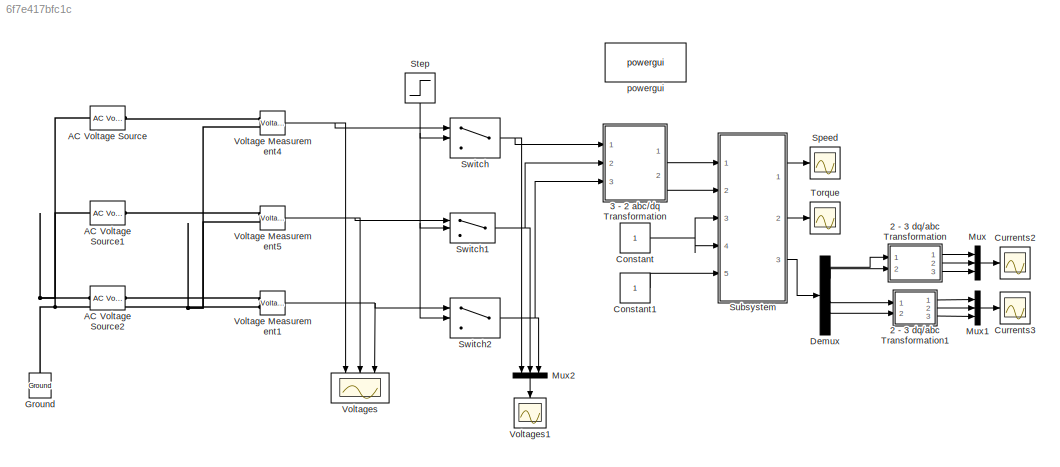
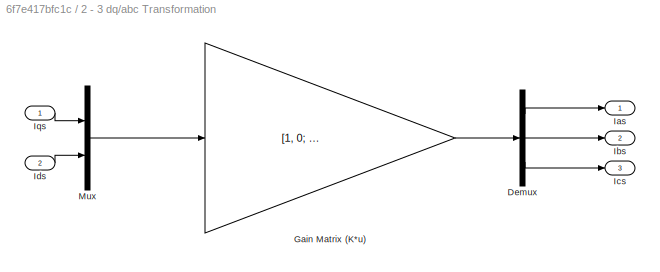
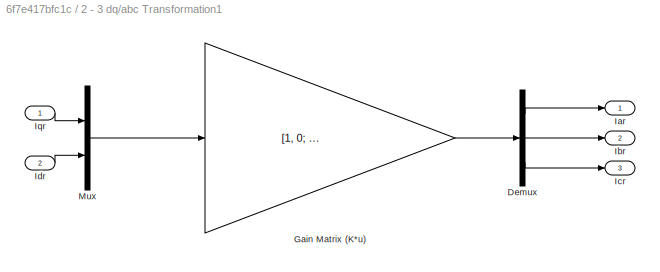
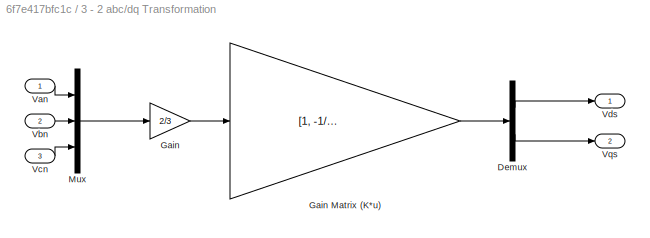
MODEL slx_6f7e417bfc1c
KIND model
BLOCK [SubSystem] 2 - 3 dq//abc Transformation
  FunctionWithSeparateData = off
  MaskHideContents = off
  MinAlgLoopOccurrences = off
  Opaque = off
  Ports = [2, 3]
  PropExecContextOutsideSubsystem = off
  RTWSystemCode = Auto
  RequestExecContextInheritance = off
BLOCK [Demux] 2 - 3 dq//abc Transformation/Demux
  DisplayOption = bar
  Outputs = 3
  Ports = [1, 3]
BLOCK [Gain] 2 - 3 dq//abc Transformation/Gain Matrix (K*u)
  Gain = [1, 0; -1/2 sqrt(3)/2; -1/2, -sqrt(3)/2]
  Multiplication = Matrix(K*u)
  OutDataTypeStr = Inherit: Inherit via internal rule
  ParamDataTypeStr = Inherit: Inherit via internal rule
  SaturateOnIntegerOverflow = off
BLOCK [Outport] 2 - 3 dq//abc Transformation/Ias
  IconDisplay = Port number
BLOCK [Outport] 2 - 3 dq//abc Transformation/Ibs
  IconDisplay = Port number
  Port = 2
BLOCK [Outport] 2 - 3 dq//abc Transformation/Ics
  IconDisplay = Port number
  Port = 3
BLOCK [Inport] 2 - 3 dq//abc Transformation/Ids
  IconDisplay = Port number
  Port = 2
BLOCK [Inport] 2 - 3 dq//abc Transformation/Iqs
  IconDisplay = Port number
BLOCK [Mux] 2 - 3 dq//abc Transformation/Mux
  DisplayOption = bar
  Inputs = 2
  Ports = [2, 1]
BLOCK [SubSystem] 2 - 3 dq//abc Transformation1
  FunctionWithSeparateData = off
  MaskHideContents = off
  MinAlgLoopOccurrences = off
  Opaque = off
  Ports = [2, 3]
  PropExecContextOutsideSubsystem = off
  RTWSystemCode = Auto
  RequestExecContextInheritance = off
BLOCK [Demux] 2 - 3 dq//abc Transformation1/Demux
  DisplayOption = bar
  Outputs = 3
  Ports = [1, 3]
BLOCK [Gain] 2 - 3 dq//abc Transformation1/Gain Matrix (K*u)
  Gain = [1, 0; -1/2 sqrt(3)/2; -1/2, -sqrt(3)/2]
  Multiplication = Matrix(K*u)
  OutDataTypeStr = Inherit: Inherit via internal rule
  ParamDataTypeStr = Inherit: Inherit via internal rule
  SaturateOnIntegerOverflow = off
BLOCK [Outport] 2 - 3 dq//abc Transformation1/Iar
  IconDisplay = Port number
BLOCK [Outport] 2 - 3 dq//abc Transformation1/Ibr
  IconDisplay = Port number
  Port = 2
BLOCK [Outport] 2 - 3 dq//abc Transformation1/Icr
  IconDisplay = Port number
  Port = 3
BLOCK [Inport] 2 - 3 dq//abc Transformation1/Idr
  IconDisplay = Port number
  Port = 2
BLOCK [Inport] 2 - 3 dq//abc Transformation1/Iqr
  IconDisplay = Port number
BLOCK [Mux] 2 - 3 dq//abc Transformation1/Mux
  DisplayOption = bar
  Inputs = 2
  Ports = [2, 1]
BLOCK [SubSystem] 3 - 2 abc//dq Transformation
  FunctionWithSeparateData = off
  MaskHideContents = off
  MinAlgLoopOccurrences = off
  Opaque = off
  Ports = [3, 2]
  PropExecContextOutsideSubsystem = off
  RTWSystemCode = Auto
  RequestExecContextInheritance = off
BLOCK [Demux] 3 - 2 abc//dq Transformation/Demux
  DisplayOption = bar
  Outputs = 2
  Ports = [1, 2]
BLOCK [Gain] 3 - 2 abc//dq Transformation/Gain
  Gain = 2/3
  OutDataTypeStr = Inherit: Inherit via internal rule
  ParamDataTypeStr = Inherit: Inherit via internal rule
  SaturateOnIntegerOverflow = off
BLOCK [Gain] 3 - 2 abc//dq Transformation/Gain Matrix (K*u)
  Gain = [1, -1/2, -1/2; 0, sqrt(3)/2, - sqrt(3)/2]
  Multiplication = Matrix(K*u)
  OutDataTypeStr = Inherit: Inherit via internal rule
  ParamDataTypeStr = Inherit: Inherit via internal rule
  SaturateOnIntegerOverflow = off
BLOCK [Mux] 3 - 2 abc//dq Transformation/Mux
  DisplayOption = bar
  Inputs = 3
  Ports = [3, 1]
BLOCK [Inport] 3 - 2 abc//dq Transformation/Van
  IconDisplay = Port number
BLOCK [Inport] 3 - 2 abc//dq Transformation/Vbn
  IconDisplay = Port number
  Port = 2
BLOCK [Inport] 3 - 2 abc//dq Transformation/Vcn
  IconDisplay = Port number
  Port = 3
BLOCK [Outport] 3 - 2 abc//dq Transformation/Vds
  IconDisplay = Port number
BLOCK [Outport] 3 - 2 abc//dq Transformation/Vqs
  IconDisplay = Port number
  Port = 2
BLOCK [Reference] AC Voltage Source  REF=powerlib/Electrical
Sources/AC Voltage Source
  Amplitude = 310.268700753
  Frequency = 50
  Measurements = None
  Phase = 90
  Ports = [0, 0, 0, 0, 0, 1, 1]
  SampleTime = 0
  SourceBlock = powerlib/Electrical\nSources/AC Voltage Source
  SourceType = AC Voltage Source
BLOCK [Reference] AC Voltage Source1  REF=powerlib/Electrical
Sources/AC Voltage Source
  Amplitude = 310.268700753
  Frequency = 50
  Measurements = None
  Phase = -30
  Ports = [0, 0, 0, 0, 0, 1, 1]
  SampleTime = 0
  SourceBlock = powerlib/Electrical\nSources/AC Voltage Source
  SourceType = AC Voltage Source
BLOCK [Reference] AC Voltage Source2  REF=powerlib/Electrical
Sources/AC Voltage Source
  Amplitude = 310.268700753
  Frequency = 50
  Measurements = None
  Phase = -150
  Ports = [0, 0, 0, 0, 0, 1, 1]
  SampleTime = 0
  SourceBlock = powerlib/Electrical\nSources/AC Voltage Source
  SourceType = AC Voltage Source
BLOCK [Constant] Constant
BLOCK [Constant] Constant1
BLOCK [Scope] Currents2
  Floating = off
  LimitDataPoints = off
  NumInputPorts = 1
  Ports = [1]
  SaveName = ScopeData2
  ShowLegends = off
BLOCK [Scope] Currents3
  Floating = off
  LimitDataPoints = off
  NumInputPorts = 1
  Ports = [1]
  SaveName = ScopeData3
  ShowLegends = off
BLOCK [Demux] Demux
  DisplayOption = bar
  Outputs = 6
  Ports = [1, 6]
BLOCK [Reference] Ground  REF=powerlib/Elements/Ground
  LConnTagsString = a
  Ports = [0, 0, 0, 0, 0, 1]
  SourceBlock = powerlib/Elements/Ground
  SourceType = Ground
BLOCK [Mux] Mux
  DisplayOption = bar
  Inputs = 3
  Ports = [3, 1]
BLOCK [Mux] Mux1
  DisplayOption = bar
  Inputs = 3
  Ports = [3, 1]
BLOCK [Mux] Mux2
  DisplayOption = bar
  Inputs = 3
  Ports = [3, 1]
BLOCK [Scope] Speed
  Floating = off
  LimitDataPoints = off
  NumInputPorts = 1
  Ports = [1]
  SaveName = ScopeData4
  ShowLegends = off
BLOCK [Step] Step
  After = 0
  Before = 1
  SampleTime = 0
  Time = 2
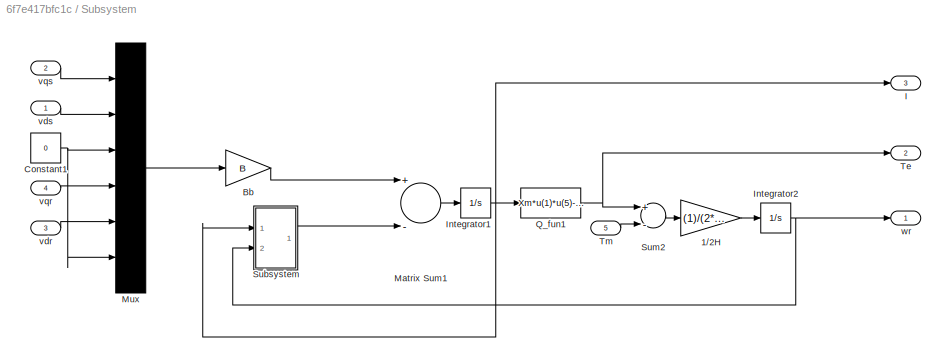
BLOCK [SubSystem] Subsystem
  FunctionWithSeparateData = off
  MaskHideContents = off
  MinAlgLoopOccurrences = off
  Opaque = off
  Ports = [5, 3]
  PropExecContextOutsideSubsystem = off
  RTWSystemCode = Auto
  RequestExecContextInheritance = off
BLOCK [Gain] Subsystem/1//2H
  Gain = (1)/(2*H)
  OutDataTypeStr = Inherit: Inherit via internal rule
  ParamDataTypeStr = Inherit: Inherit via internal rule
  SaturateOnIntegerOverflow = off
BLOCK [Gain] Subsystem/Bb
  Gain = B
  Multiplication = Matrix(K*u)
  OutDataTypeStr = Inherit: Inherit via internal rule
  ParamDataTypeStr = Inherit: Inherit via internal rule
  SaturateOnIntegerOverflow = off
BLOCK [Constant] Subsystem/Constant1
  Value = 0
BLOCK [Outport] Subsystem/I
  IconDisplay = Port number
  Port = 3
BLOCK [Integrator] Subsystem/Integrator1
  InitialCondition = [0; 0; 0; 0; 0; 0]
  Ports = [1, 1]
BLOCK [Integrator] Subsystem/Integrator2
  Ports = [1, 1]
BLOCK [Sum] Subsystem/Matrix Sum1
  InputSameDT = off
  Inputs = +-
  OutDataTypeStr = Inherit: Inherit via internal rule
  Ports = [2, 1]
  SaturateOnIntegerOverflow = off
BLOCK [Mux] Subsystem/Mux
  DisplayOption = bar
  Inputs = 6
  Ports = [6, 1]
BLOCK [Fcn] Subsystem/Q_fun1
  Expr = Xm*u(1)*u(5)-Xm*u(2)*u(4)
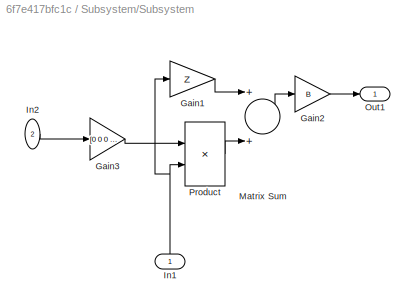
BLOCK [SubSystem] Subsystem/Subsystem
  FunctionWithSeparateData = off
  MaskHideContents = off
  MinAlgLoopOccurrences = off
  Opaque = off
  Ports = [2, 1]
  PropExecContextOutsideSubsystem = off
  RTWSystemCode = Auto
  RequestExecContextInheritance = off
BLOCK [Gain] Subsystem/Subsystem/Gain1
  Gain = Z
  Multiplication = Matrix(K*u)
  OutDataTypeStr = Inherit: Inherit via internal rule
  ParamDataTypeStr = Inherit: Inherit via internal rule
  SaturateOnIntegerOverflow = off
BLOCK [Gain] Subsystem/Subsystem/Gain2
  Gain = B
  Multiplication = Matrix(K*u)
  OutDataTypeStr = Inherit: Inherit via internal rule
  ParamDataTypeStr = Inherit: Inherit via internal rule
  SaturateOnIntegerOverflow = off
BLOCK [Gain] Subsystem/Subsystem/Gain3
  Gain = [0 0 0 0 0 0;0 0 0 0 0 0;0 0 0 0 0 0;0 -Xm 0 0 -Xr 0;Xm 0 0 Xr 0 0;0 0 0 0 0 0]
  OutDataTypeStr = Inherit: Inherit via internal rule
  ParamDataTypeStr = Inherit: Inherit via internal rule
  SaturateOnIntegerOverflow = off
BLOCK [Inport] Subsystem/Subsystem/In1
  IconDisplay = Port number
BLOCK [Inport] Subsystem/Subsystem/In2
  IconDisplay = Port number
  Port = 2
BLOCK [Sum] Subsystem/Subsystem/Matrix Sum
  InputSameDT = off
  OutDataTypeStr = Inherit: Inherit via internal rule
  Ports = [2, 1]
  SaturateOnIntegerOverflow = off
BLOCK [Outport] Subsystem/Subsystem/Out1
  IconDisplay = Port number
BLOCK [Product] Subsystem/Subsystem/Product
  InputSameDT = off
  Multiplication = Matrix(*)
  OutDataTypeStr = Inherit: Inherit via internal rule
  Ports = [2, 1]
  RndMeth = Floor
  SaturateOnIntegerOverflow = off
BLOCK [Sum] Subsystem/Sum2
  Inputs = +-
  Ports = [2, 1]
BLOCK [Outport] Subsystem/Te
  IconDisplay = Port number
  Port = 2
BLOCK [Inport] Subsystem/Tm
  IconDisplay = Port number
  Port = 5
BLOCK [Inport] Subsystem/vdr
  IconDisplay = Port number
  Port = 3
BLOCK [Inport] Subsystem/vds
  IconDisplay = Port number
BLOCK [Inport] Subsystem/vqr
  IconDisplay = Port number
  Port = 4
BLOCK [Inport] Subsystem/vqs
  IconDisplay = Port number
  Port = 2
BLOCK [Outport] Subsystem/wr
  IconDisplay = Port number
BLOCK [Switch] Switch
  Criteria = u2 > Threshold
  InputSameDT = off
  SaturateOnIntegerOverflow = off
BLOCK [Switch] Switch1
  Criteria = u2 > Threshold
  InputSameDT = off
  SaturateOnIntegerOverflow = off
BLOCK [Switch] Switch2
  Criteria = u2 > Threshold
  InputSameDT = off
  SaturateOnIntegerOverflow = off
BLOCK [Scope] Torque
  Floating = off
  LimitDataPoints = off
  NumInputPorts = 1
  Ports = [1]
  SaveName = ScopeData5
  ShowLegends = off
BLOCK [Reference] Voltage Measurement1  REF=powerlib/Measurements/Voltage Measurement
  OutputType = Complex
  PSBequivalent = 0
  PhasorSimulation = off
  Ports = [0, 1, 0, 0, 0, 2]
  SourceBlock = powerlib/Measurements/Voltage Measurement
  SourceType = Voltage Measurement
  UserDataPersistent = on
BLOCK [Reference] Voltage Measurement4  REF=powerlib/Measurements/Voltage Measurement
  OutputType = Complex
  PSBequivalent = 0
  PhasorSimulation = off
  Ports = [0, 1, 0, 0, 0, 2]
  SourceBlock = powerlib/Measurements/Voltage Measurement
  SourceType = Voltage Measurement
  UserDataPersistent = on
BLOCK [Reference] Voltage Measurement5  REF=powerlib/Measurements/Voltage Measurement
  OutputType = Complex
  PSBequivalent = 0
  PhasorSimulation = off
  Ports = [0, 1, 0, 0, 0, 2]
  SourceBlock = powerlib/Measurements/Voltage Measurement
  SourceType = Voltage Measurement
  UserDataPersistent = on
BLOCK [Scope] Voltages
  Floating = off
  LimitDataPoints = off
  NumInputPorts = 3
  Ports = [3]
  ShowLegends = off
  YMax = 5~5~5
  YMin = -5~-5~-5
BLOCK [Scope] Voltages1
  Floating = off
  LimitDataPoints = off
  NumInputPorts = 1
  Ports = [1]
  SaveName = ScopeData1
  ShowLegends = off
BLOCK [Reference] powergui  REF=powerlib/powergui
  DisableRonSwitches = off
  DisableSnubberDevices = off
  DisableVfSwitches = off
  DisplayEquations = off
  DisplayStyle = 1
  EnableUseOfTLC = off
  ErrMax = 1e-4
  Frange = [0:2:500]
  FreqAxis = off
  FunctionMessages = off
  HookPort = off
  Interpol = off
  Iterations = 50
  MaxFrequency = 1000
  Pbase = 100e6
  Ports = []
  Priority = 1
  ResistiveCurrentMeasurement = off
  RestoreLinks = warning
  RmsSteady = 1
  SPID = off
  SampleTime = 50e-6
  ShowGrid = off
  SolverType = Tustin
  SourceBlock = powerlib/powergui
  SourceType = PSB option menu block
  StartTime = 0.0
  SwTol = 0
  Ts = 0
  UnitsV = kV
  UnitsW = MW
  UserDataPersistent = on
  Xlog = on
  Ylog = off
  ZoomFFT = off
  cycles = 1
  display = off
  echomessages = off
  frequency = 50
  frequencyindice = 50
  frequencyindicesteady = 1
  fundamental = 60
  methode = off
  save = off
  variable = ZData
  x0status = blocks
LINE 2 - 3 dq//abc Transformation/Demux:1 -> 2 - 3 dq//abc Transformation/Ias:1
LINE 2 - 3 dq//abc Transformation/Demux:2 -> 2 - 3 dq//abc Transformation/Ibs:1
LINE 2 - 3 dq//abc Transformation/Demux:3 -> 2 - 3 dq//abc Transformation/Ics:1
LINE 2 - 3 dq//abc Transformation/Gain Matrix (K*u):1 -> 2 - 3 dq//abc Transformation/Demux:1
LINE 2 - 3 dq//abc Transformation/Ids:1 -> 2 - 3 dq//abc Transformation/Mux:2
LINE 2 - 3 dq//abc Transformation/Iqs:1 -> 2 - 3 dq//abc Transformation/Mux:1
LINE 2 - 3 dq//abc Transformation/Mux:1 -> 2 - 3 dq//abc Transformation/Gain Matrix (K*u):1
LINE 2 - 3 dq//abc Transformation1/Demux:1 -> 2 - 3 dq//abc Transformation1/Iar:1
LINE 2 - 3 dq//abc Transformation1/Demux:2 -> 2 - 3 dq//abc Transformation1/Ibr:1
LINE 2 - 3 dq//abc Transformation1/Demux:3 -> 2 - 3 dq//abc Transformation1/Icr:1
LINE 2 - 3 dq//abc Transformation1/Gain Matrix (K*u):1 -> 2 - 3 dq//abc Transformation1/Demux:1
LINE 2 - 3 dq//abc Transformation1/Idr:1 -> 2 - 3 dq//abc Transformation1/Mux:2
LINE 2 - 3 dq//abc Transformation1/Iqr:1 -> 2 - 3 dq//abc Transformation1/Mux:1
LINE 2 - 3 dq//abc Transformation1/Mux:1 -> 2 - 3 dq//abc Transformation1/Gain Matrix (K*u):1
LINE 2 - 3 dq//abc Transformation1:1 -> Mux1:1
LINE 2 - 3 dq//abc Transformation1:2 -> Mux1:2
LINE 2 - 3 dq//abc Transformation1:3 -> Mux1:3
LINE 2 - 3 dq//abc Transformation:1 -> Mux:1
LINE 2 - 3 dq//abc Transformation:2 -> Mux:2
LINE 2 - 3 dq//abc Transformation:3 -> Mux:3
LINE 3 - 2 abc//dq Transformation/Demux:1 -> 3 - 2 abc//dq Transformation/Vds:1
LINE 3 - 2 abc//dq Transformation/Demux:2 -> 3 - 2 abc//dq Transformation/Vqs:1
LINE 3 - 2 abc//dq Transformation/Gain Matrix (K*u):1 -> 3 - 2 abc//dq Transformation/Demux:1
LINE 3 - 2 abc//dq Transformation/Gain:1 -> 3 - 2 abc//dq Transformation/Gain Matrix (K*u):1
LINE 3 - 2 abc//dq Transformation/Mux:1 -> 3 - 2 abc//dq Transformation/Gain:1
LINE 3 - 2 abc//dq Transformation/Van:1 -> 3 - 2 abc//dq Transformation/Mux:1
LINE 3 - 2 abc//dq Transformation/Vbn:1 -> 3 - 2 abc//dq Transformation/Mux:2
LINE 3 - 2 abc//dq Transformation/Vcn:1 -> 3 - 2 abc//dq Transformation/Mux:3
LINE 3 - 2 abc//dq Transformation:1 -> Subsystem:1
LINE 3 - 2 abc//dq Transformation:2 -> Subsystem:2
LINE Constant1:1 -> Subsystem:5
NET Constant:1 -> Subsystem:3, Subsystem:4
LINE Demux:1 -> 2 - 3 dq//abc Transformation:1
LINE Demux:2 -> 2 - 3 dq//abc Transformation:2
LINE Demux:4 -> 2 - 3 dq//abc Transformation1:1
LINE Demux:5 -> 2 - 3 dq//abc Transformation1:2
LINE Mux1:1 -> Currents3:1
LINE Mux2:1 -> Voltages1:1
LINE Mux:1 -> Currents2:1
NET Step:1 -> Switch1:2, Switch2:2, Switch:2
LINE Subsystem/1//2H:1 -> Subsystem/Integrator2:1
LINE Subsystem/Bb:1 -> Subsystem/Matrix Sum1:1
NET Subsystem/Constant1:1 -> Subsystem/Mux:3, Subsystem/Mux:6
NET Subsystem/Integrator1:1 -> Subsystem/I:1, Subsystem/Q_fun1:1, Subsystem/Subsystem:1
NET Subsystem/Integrator2:1 -> Subsystem/Subsystem:2, Subsystem/wr:1
LINE Subsystem/Matrix Sum1:1 -> Subsystem/Integrator1:1
LINE Subsystem/Mux:1 -> Subsystem/Bb:1
NET Subsystem/Q_fun1:1 -> Subsystem/Sum2:1, Subsystem/Te:1
LINE Subsystem/Subsystem/Gain1:1 -> Subsystem/Subsystem/Matrix Sum:1
LINE Subsystem/Subsystem/Gain2:1 -> Subsystem/Subsystem/Out1:1
LINE Subsystem/Subsystem/Gain3:1 -> Subsystem/Subsystem/Product:1
NET Subsystem/Subsystem/In1:1 -> Subsystem/Subsystem/Gain1:1, Subsystem/Subsystem/Product:2
LINE Subsystem/Subsystem/In2:1 -> Subsystem/Subsystem/Gain3:1
LINE Subsystem/Subsystem/Matrix Sum:1 -> Subsystem/Subsystem/Gain2:1
LINE Subsystem/Subsystem/Product:1 -> Subsystem/Subsystem/Matrix Sum:2
LINE Subsystem/Subsystem:1 -> Subsystem/Matrix Sum1:2
LINE Subsystem/Sum2:1 -> Subsystem/1//2H:1
LINE Subsystem/Tm:1 -> Subsystem/Sum2:2
LINE Subsystem/vdr:1 -> Subsystem/Mux:5
LINE Subsystem/vds:1 -> Subsystem/Mux:2
LINE Subsystem/vqr:1 -> Subsystem/Mux:4
LINE Subsystem/vqs:1 -> Subsystem/Mux:1
LINE Subsystem:1 -> Speed:1
LINE Subsystem:2 -> Torque:1
LINE Subsystem:3 -> Demux:1
NET Switch1:1 -> 3 - 2 abc//dq Transformation:2, Mux2:2
NET Switch2:1 -> 3 - 2 abc//dq Transformation:3, Mux2:3
NET Switch:1 -> 3 - 2 abc//dq Transformation:1, Mux2:1
NET Voltage Measurement1:1 -> Switch2:1, Voltages:3
NET Voltage Measurement4:1 -> Switch:1, Voltages:1
NET Voltage Measurement5:1 -> Switch1:1, Voltages:2
PNET net1: AC Voltage Source1:LConn1 -- AC Voltage Source2:LConn1 -- AC Voltage Source:LConn1 -- Ground:LConn1 -- Voltage Measurement1:LConn2 -- Voltage Measurement4:LConn2 -- Voltage Measurement5:LConn2
PLINE AC Voltage Source1:RConn1 -- Voltage Measurement5:LConn1
PLINE AC Voltage Source2:RConn1 -- Voltage Measurement1:LConn1
PLINE AC Voltage Source:RConn1 -- Voltage Measurement4:LConn1
note: NET lines group one-source signal fan-out (src -> all destinations, sorted); 1:1 wires keep LINE; PNET lines group multi-terminal physical nets as a canonical sorted terminal list (undirected conserving connections); 2-terminal nets keep the pairwise PLINE form
